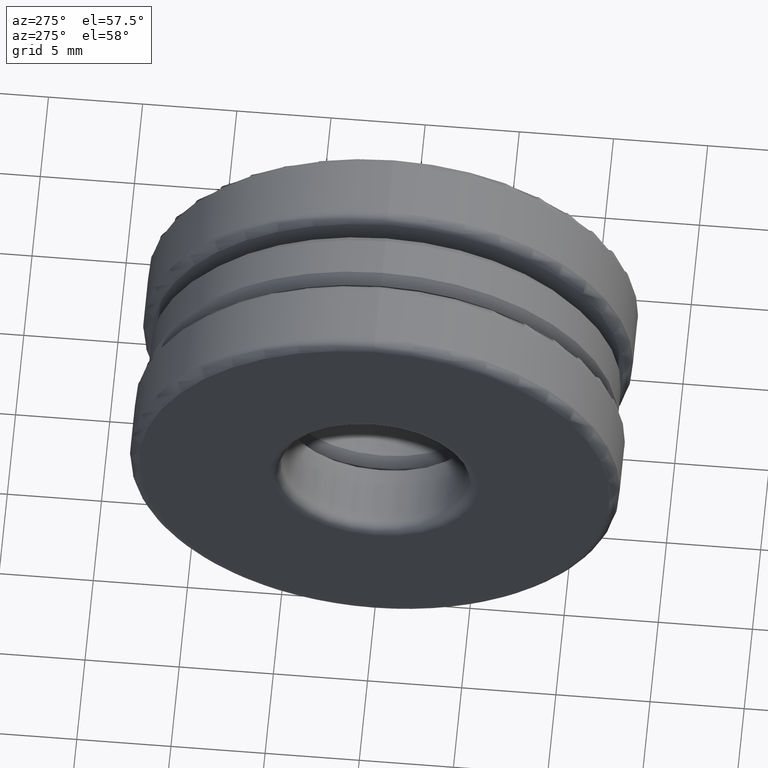
[diagram: clean part render]
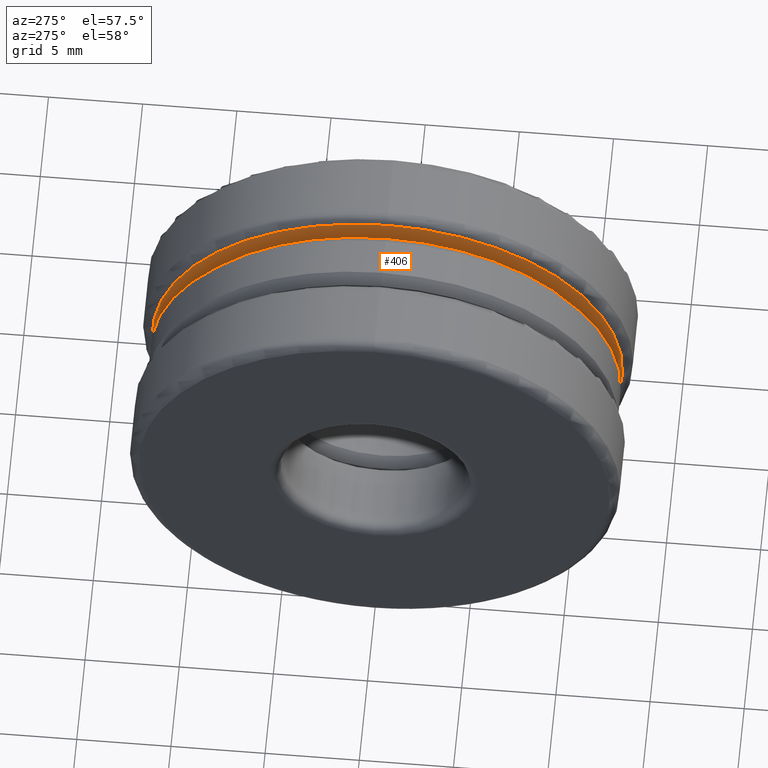
[diagram: same view with one face highlighted and labeled with its STEP entity id]
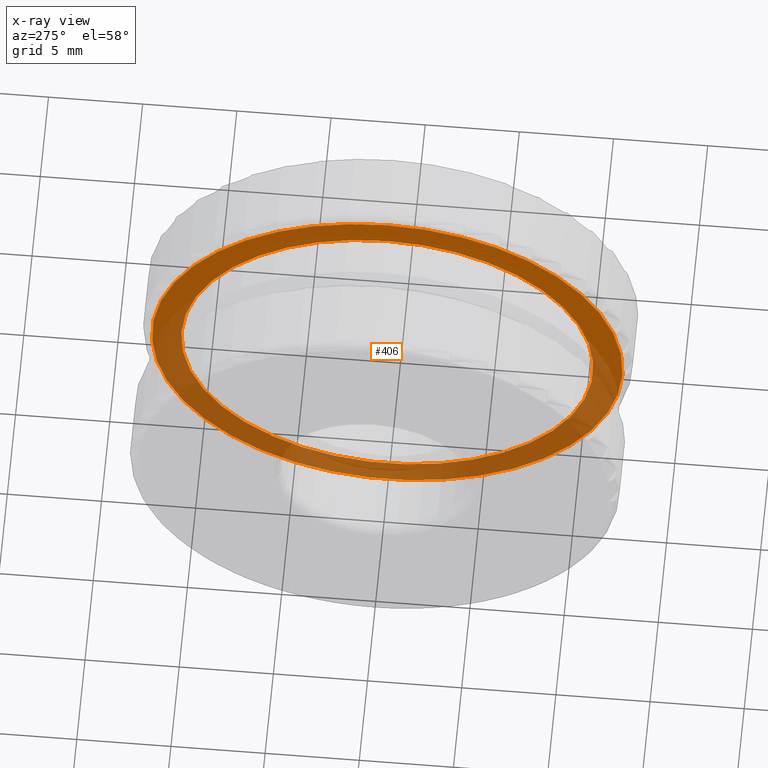
[diagram: x-ray of the same camera — body ghosted, the highlighted face saturated]
A machine part, auxiliary view. The second image highlights one B-rep face of the part: STEP entity #406.
The next image is the same camera in x-ray: the body ghosted, the highlighted face saturated — about 52% of this face is hidden behind the body in this view.
In plain terms, the highlighted planar face has unit normal (1, 0, 0).
Its self-contained STEP definition (entity closure, byte-faithful):
#51 = DIRECTION ( 'NONE',  ( 0.0000000000000000000, 0.0000000000000000000, -1.000000000000000000 ) ) ;
#53 = ORIENTED_EDGE ( 'NONE', *, *, #755, .F. ) ;
#100 = DIRECTION ( 'NONE',  ( 0.0000000000000000000, 0.0000000000000000000, 1.000000000000000000 ) ) ;
#114 = DIRECTION ( 'NONE',  ( -1.000000000000000000, -0.0000000000000000000, -0.0000000000000000000 ) ) ;
#145 = AXIS2_PLACEMENT_3D ( 'NONE', #732, #800, #100 ) ;
#162 = EDGE_CURVE ( 'NONE', #263, #263, #621, .T. ) ;
#164 = DIRECTION ( 'NONE',  ( 0.0000000000000000000, 0.0000000000000000000, 1.000000000000000000 ) ) ;
#257 = AXIS2_PLACEMENT_3D ( 'NONE', #562, #114, #164 ) ;
#263 = VERTEX_POINT ( 'NONE', #408 ) ;
#284 = FACE_BOUND ( 'NONE', #456, .T. ) ;
#309 = CARTESIAN_POINT ( 'NONE',  ( 0.07866824000000018100, 0.0000000000000000000, 0.0000000000000000000 ) ) ;
#349 = CARTESIAN_POINT ( 'NONE',  ( 0.07866824000000018100, 0.0000000000000000000, 0.4306679592433876900 ) ) ;
#378 = DIRECTION ( 'NONE',  ( 1.000000000000000000, 0.0000000000000000000, 0.0000000000000000000 ) ) ;
#406 = ADVANCED_FACE ( 'NONE', ( #284, #598 ), #698, .F. ) ;
#408 = CARTESIAN_POINT ( 'NONE',  ( 0.07866824000000018100, 0.0000000000000000000, 0.4920000000000001000 ) ) ;
#456 = EDGE_LOOP ( 'NONE', ( #53 ) ) ;
#468 = VERTEX_POINT ( 'NONE', #349 ) ;
#556 = ORIENTED_EDGE ( 'NONE', *, *, #162, .T. ) ;
#562 = CARTESIAN_POINT ( 'NONE',  ( 0.07866824000000018100, 0.0000000000000000000, 0.0000000000000000000 ) ) ;
#598 = FACE_OUTER_BOUND ( 'NONE', #694, .T. ) ;
#621 = CIRCLE ( 'NONE', #257, 0.4920000000000001000 ) ;
#694 = EDGE_LOOP ( 'NONE', ( #556 ) ) ;
#698 = PLANE ( 'NONE',  #822 ) ;
#732 = CARTESIAN_POINT ( 'NONE',  ( 0.07866824000000018100, 0.0000000000000000000, 0.0000000000000000000 ) ) ;
#755 = EDGE_CURVE ( 'NONE', #468, #468, #767, .T. ) ;
#767 = CIRCLE ( 'NONE', #145, 0.4306679592433876900 ) ;
#800 = DIRECTION ( 'NONE',  ( -1.000000000000000000, -0.0000000000000000000, -0.0000000000000000000 ) ) ;
#822 = AXIS2_PLACEMENT_3D ( 'NONE', #309, #378, #51 ) ;